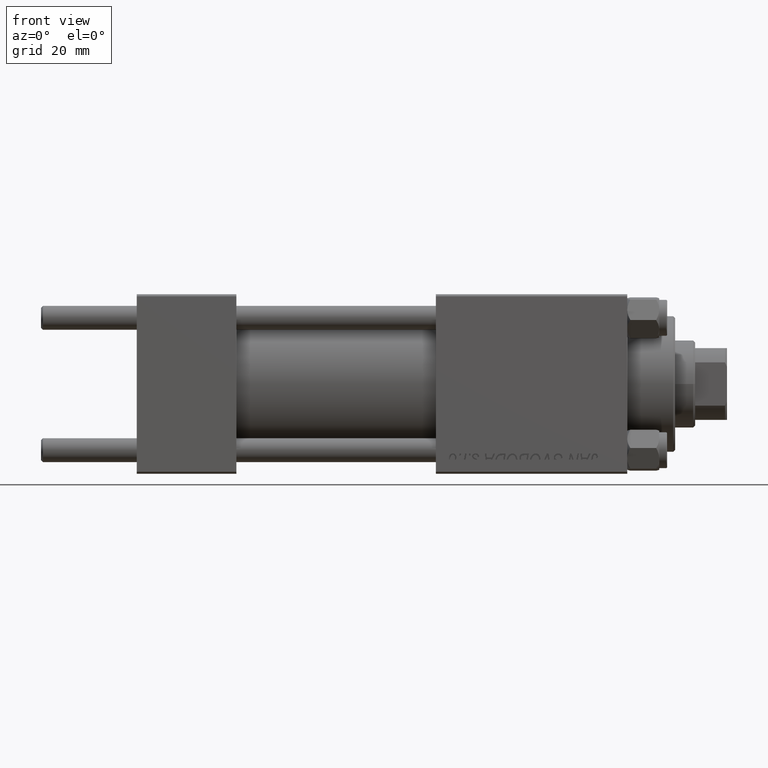
[diagram: clean part render]
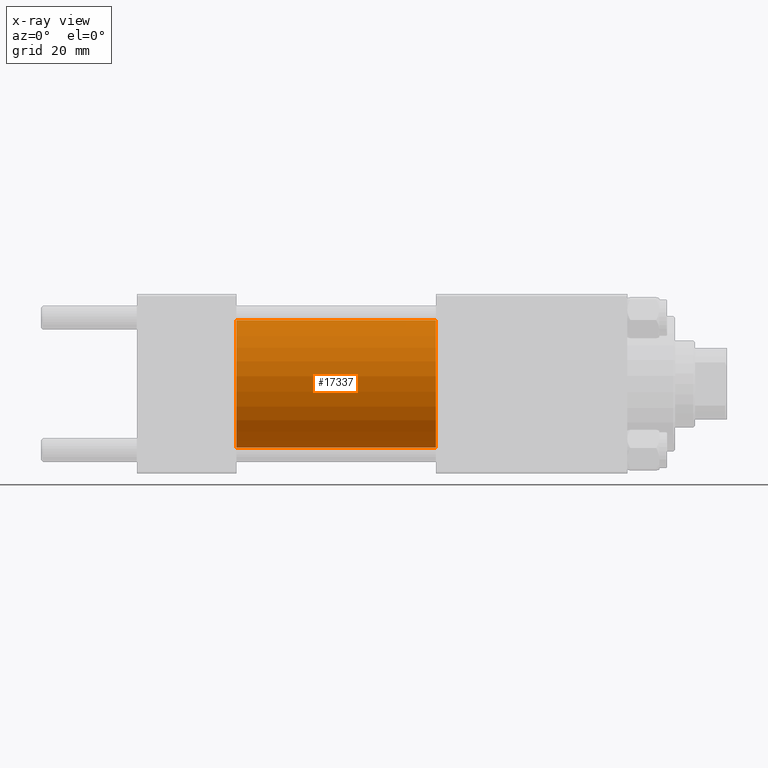
[diagram: x-ray — body ghosted, one internal face saturated and labeled with its STEP entity id]
A machine part, front view, then the same camera in x-ray: the body is ghosted and one INTERNAL B-rep face — a face not visible from any outside direction — is saturated and labeled: STEP entity #17337.
In plain terms, the highlighted cylindrical surface (partial cylindrical patch) has radius 16 mm, axis along (-1, -0, -0).
Its self-contained STEP definition (entity closure, byte-faithful):
#2249 = ORIENTED_EDGE ( 'NONE', *, *, #28576, .F. ) ;
#3250 = DIRECTION ( 'NONE',  ( 1.000000000000000000, 0.000000000000000000, 0.000000000000000000 ) ) ;
#3397 = ORIENTED_EDGE ( 'NONE', *, *, #49477, .F. ) ;
#4045 = EDGE_CURVE ( 'NONE', #31365, #23633, #9246, .T. ) ;
#7498 = CARTESIAN_POINT ( 'NONE',  ( 75.00000000000001421, 1.959434878635765131E-15, -16.00000000000000000 ) ) ;
#7839 = CARTESIAN_POINT ( 'NONE',  ( 75.00000000000001421, 0.000000000000000000, 0.000000000000000000 ) ) ;
#9246 = CIRCLE ( 'NONE', #35930, 16.00000000000000000 ) ;
#9522 = LINE ( 'NONE', #24953, #32915 ) ;
#10315 = EDGE_CURVE ( 'NONE', #23633, #42239, #9522, .T. ) ;
#12539 = LINE ( 'NONE', #32021, #47873 ) ;
#13706 = AXIS2_PLACEMENT_3D ( 'NONE', #37915, #3250, #18926 ) ;
#13916 = CARTESIAN_POINT ( 'NONE',  ( 25.00000000000000000, 0.000000000000000000, 16.00000000000000000 ) ) ;
#16856 = DIRECTION ( 'NONE',  ( -1.000000000000000000, -0.000000000000000000, -0.000000000000000000 ) ) ;
#17337 = ADVANCED_FACE ( 'NONE', ( #42749 ), #18733, .F. ) ;
#18733 = CYLINDRICAL_SURFACE ( 'NONE', #37887, 16.00000000000000000 ) ;
#18926 = DIRECTION ( 'NONE',  ( 0.000000000000000000, 0.000000000000000000, -1.000000000000000000 ) ) ;
#22539 = ORIENTED_EDGE ( 'NONE', *, *, #4045, .T. ) ;
#23504 = CARTESIAN_POINT ( 'NONE',  ( 75.00000000000001421, 0.000000000000000000, 0.000000000000000000 ) ) ;
#23633 = VERTEX_POINT ( 'NONE', #7498 ) ;
#24953 = CARTESIAN_POINT ( 'NONE',  ( 75.00000000000001421, 1.959434878635765131E-15, -16.00000000000000000 ) ) ;
#25625 = CARTESIAN_POINT ( 'NONE',  ( 25.00000000000000000, 1.959434878635765131E-15, -16.00000000000000000 ) ) ;
#28576 = EDGE_CURVE ( 'NONE', #31365, #32614, #12539, .T. ) ;
#29049 = CIRCLE ( 'NONE', #13706, 16.00000000000000000 ) ;
#30968 = CARTESIAN_POINT ( 'NONE',  ( 75.00000000000001421, 0.000000000000000000, 16.00000000000000000 ) ) ;
#31365 = VERTEX_POINT ( 'NONE', #30968 ) ;
#32021 = CARTESIAN_POINT ( 'NONE',  ( 75.00000000000001421, 0.000000000000000000, 16.00000000000000000 ) ) ;
#32614 = VERTEX_POINT ( 'NONE', #13916 ) ;
#32915 = VECTOR ( 'NONE', #16856, 1000.000000000000000 ) ;
#34176 = DIRECTION ( 'NONE',  ( -1.000000000000000000, -0.000000000000000000, -0.000000000000000000 ) ) ;
#35930 = AXIS2_PLACEMENT_3D ( 'NONE', #7839, #49617, #38479 ) ;
#37887 = AXIS2_PLACEMENT_3D ( 'NONE', #23504, #34176, #49599 ) ;
#37915 = CARTESIAN_POINT ( 'NONE',  ( 25.00000000000000000, 0.000000000000000000, 0.000000000000000000 ) ) ;
#38479 = DIRECTION ( 'NONE',  ( 0.000000000000000000, 0.000000000000000000, -1.000000000000000000 ) ) ;
#42080 = EDGE_LOOP ( 'NONE', ( #22539, #45755, #3397, #2249 ) ) ;
#42239 = VERTEX_POINT ( 'NONE', #25625 ) ;
#42749 = FACE_OUTER_BOUND ( 'NONE', #42080, .T. ) ;
#43663 = DIRECTION ( 'NONE',  ( -1.000000000000000000, -0.000000000000000000, -0.000000000000000000 ) ) ;
#45755 = ORIENTED_EDGE ( 'NONE', *, *, #10315, .T. ) ;
#47873 = VECTOR ( 'NONE', #43663, 1000.000000000000000 ) ;
#49477 = EDGE_CURVE ( 'NONE', #32614, #42239, #29049, .T. ) ;
#49599 = DIRECTION ( 'NONE',  ( 0.000000000000000000, 0.000000000000000000, 1.000000000000000000 ) ) ;
#49617 = DIRECTION ( 'NONE',  ( 1.000000000000000000, 0.000000000000000000, 0.000000000000000000 ) ) ;